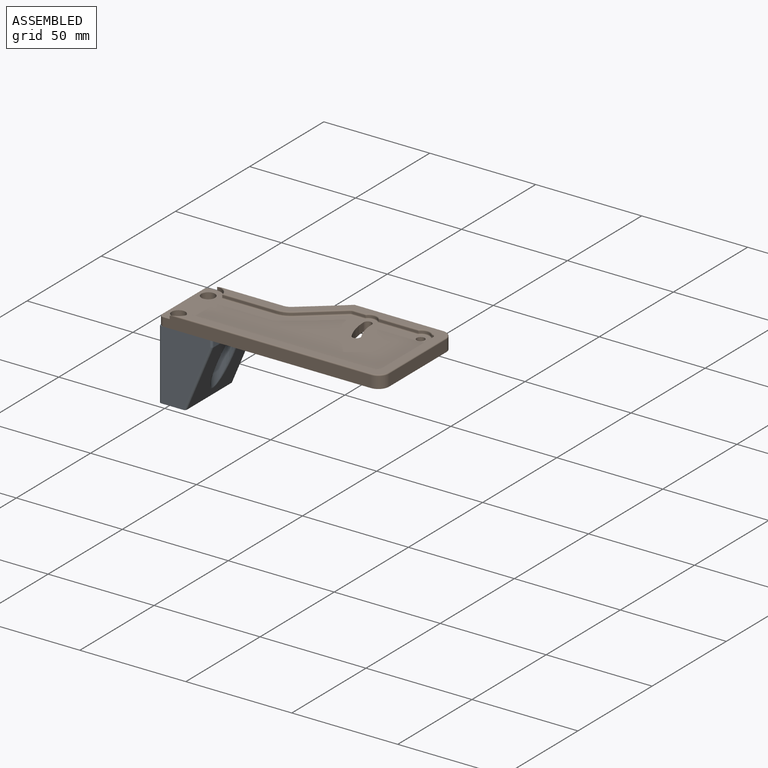
[diagram: assembled view]
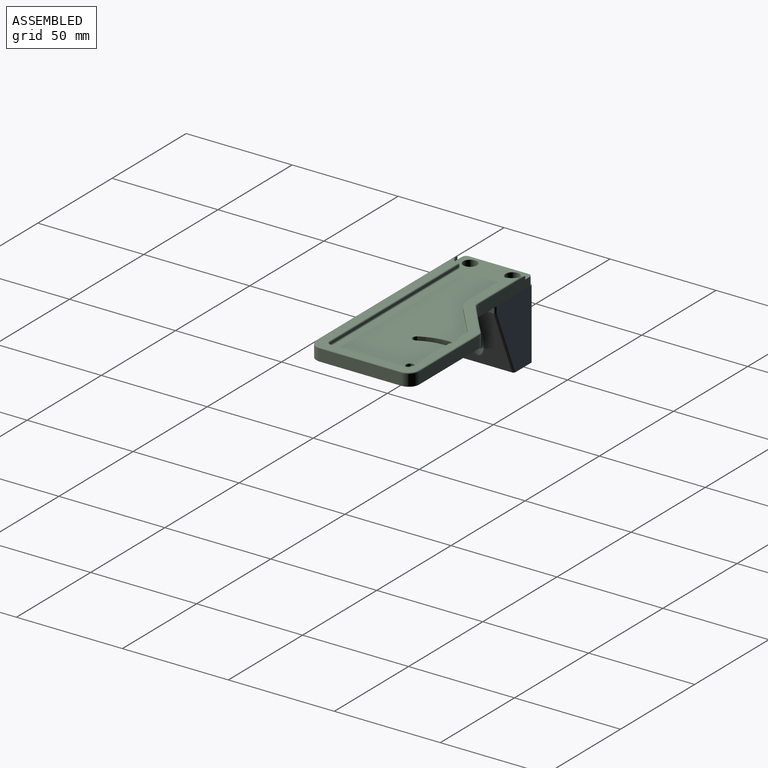
[diagram: assembled view, second angle]
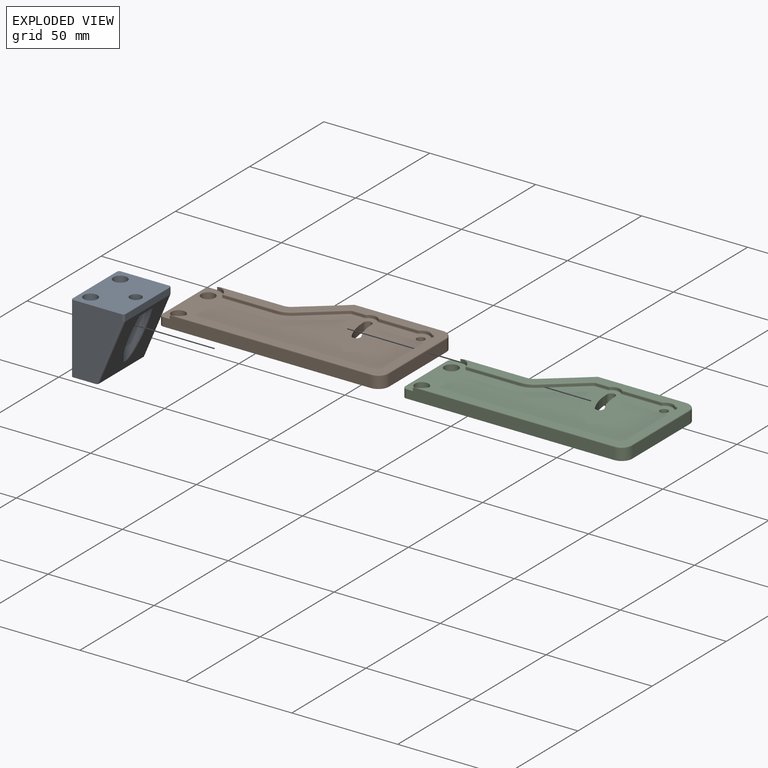
[diagram: exploded view]
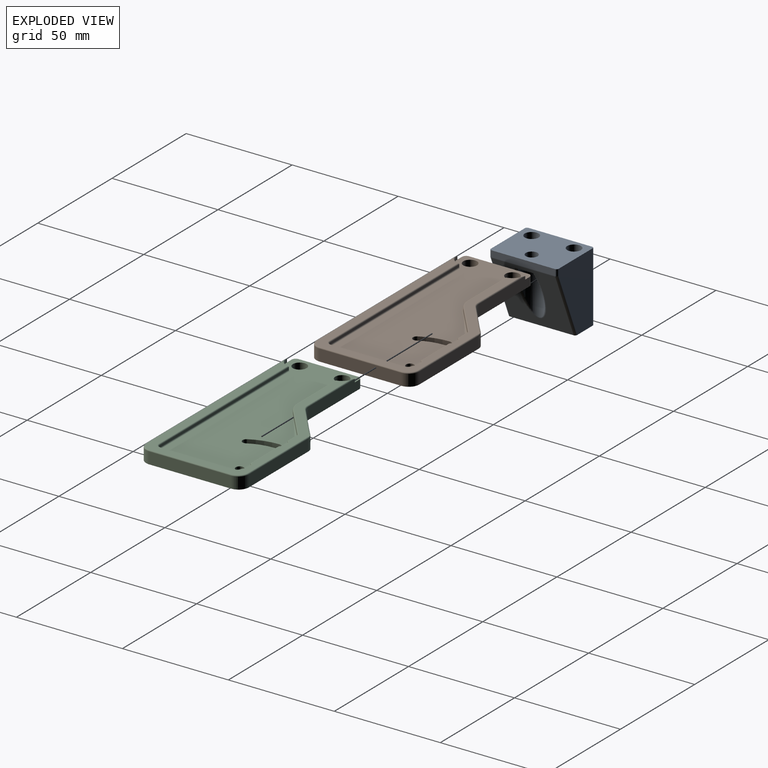
[diagram: exploded view, second angle]
ASSEMBLY  parts=3 mates=3
PART A: 22 faces, bbox 25.2x32.2x33.6 mm
  f0: plane 33x23mm, normal (0,-1,0), area 569.8mm2, adj f3,f7,f13,f14,f20
  f1: plane 33x23mm, normal (0,1,0), area 569.8mm2, adj f3,f7,f16,f19,f21
  f2: plane 30x2.93mm, normal (1,0,0), area 87.9mm2, adj f7,f13,f16,f17
  f3: plane 32.18x12.68mm, normal (0,0,1), area 332.7mm2, adj f0,f1,f4,f5,f6,f8,f14,f19
  f4: plane 33x30mm, normal (-1,0,0), area 990mm2, adj f3,f7,f20,f21
  f5: cylinder r=3.25mm len=33mm, axis (0,0,1), area 673.9mm2, adj f3,f7
  f6: cylinder r=3.25mm len=33mm, axis (0,0,1), area 673.9mm2, adj f3,f7
  f7: plane 32x25mm, normal (0,0,-1), area 709mm2, adj f0,f1,f2,f4,f5,f6,f9,f13
  f8: plane 30x29.69mm, normal (0.92,0,0.39), area 702.2mm2, adj f3,f10,f12,f14,f17,f19
  f9: cylinder r=2.75mm len=5.5mm, axis (0,0,-1), area 86.4mm2, adj f7,f10
  f10: plane 10.05x9.97mm, normal (0,0,1), area 58.7mm2, adj f8,f9,f11,f12
  f11: cylinder r=5.03mm len=23.73mm, axis (0,0,-1), area 321.3mm2, adj f10,f12
  f12: bspline ~24.49x12.05mm, area 73.8mm2, adj f8,f10,f11
  f13: cylinder r=1mm len=2.93mm, axis (0,0,1), area 4.6mm2, adj f0,f2,f7,f15
  f14: cylinder r=1mm len=30.46mm, axis (-0.39,0,0.92), area 50.9mm2, adj f0,f3,f8,f15
  f15: sphere r=1mm, area 0.4mm2, adj f13,f14,f17
  f16: cylinder r=1mm len=2.93mm, axis (0,0,-1), area 4.6mm2, adj f1,f2,f7,f18
  f17: cylinder r=1mm len=30mm, axis (0,-1,0), area 11.9mm2, adj f2,f8,f15,f18
  f18: sphere r=1mm, area 0.4mm2, adj f16,f17,f19
  f19: cylinder r=1mm len=30.46mm, axis (0.39,0,-0.92), area 50.9mm2, adj f1,f3,f8,f18
  f20: cylinder r=1mm len=33mm, axis (0,0,-1), area 51.8mm2, adj f0,f3,f4,f7
  f21: cylinder r=1mm len=33mm, axis (0,0,1), area 51.8mm2, adj f1,f3,f4,f7
PART B: 83 faces, bbox 105.4x50.4x6 mm
  f0: plane 10.71x8.87mm, normal (0,0,1), area 0.4mm2, adj f9,f23,f24
  f1: plane 1.51x0.87mm, normal (0,0,1), area 0mm2, adj f10,f25
  f2: plane 99.51x44.43mm, normal (0,0,1), area 2882.7mm2, adj f4,f5,f6,f7,f8,f13,f14,f15
  f3: cylinder r=5mm len=5.5mm, axis (0,0,1), area 43.2mm2, adj f4,f20,f21,f60
  f4: plane 98.01x5.5mm, normal (0,-1,0), area 534.6mm2, adj f2,f3,f5,f21,f26,f58
  f5: cylinder r=2mm len=4mm, axis (0,0,1), area 12.6mm2, adj f2,f4,f6,f21
  f6: plane 28x4mm, normal (-1,0,0), area 112mm2, adj f2,f5,f7,f21
  f7: cylinder r=2mm len=4mm, axis (0,0,1), area 12.6mm2, adj f2,f6,f8,f21
  f8: plane 34.56x5.5mm, normal (0,1,0), area 185.5mm2, adj f2,f7,f21,f41,f42,f63
  f9: plane 10.71x8.87mm, normal (-0.64,0.77,0), area 55.6mm2, adj f0,f10,f21,f23
  f10: cylinder r=5mm len=4mm, axis (0,0,1), area 13.8mm2, adj f1,f9,f11,f21,f22
  f11: plane 39.83x5.5mm, normal (0,1,0), area 219mm2, adj f10,f12,f21,f25,f66
  f12: cylinder r=5mm len=5.5mm, axis (0,0,1), area 43.2mm2, adj f11,f20,f21,f64
  f13: cylinder r=1.9mm len=4mm, axis (0,0,1), area 23.9mm2, adj f2,f14,f19,f21
  f14: cylinder r=26.9mm len=12.97mm, axis (0,0,1), area 54.1mm2, adj f2,f13,f15,f21
  f15: cylinder r=1.9mm len=4mm, axis (0,0,1), area 23.9mm2, adj f2,f14,f19,f21
  f16: cylinder r=3.25mm len=6.5mm, axis (0,0,1), area 81.7mm2, adj f2,f21
  f17: cylinder r=3.25mm len=6.5mm, axis (0,0,1), area 81.7mm2, adj f2,f21
  f18: cylinder r=1.9mm len=4mm, axis (0,0,1), area 47.8mm2, adj f2,f21
  f19: cylinder r=23.1mm len=11.14mm, axis (0,0,1), area 46.5mm2, adj f2,f13,f15,f21
  f20: plane 38.57x5.5mm, normal (1,0,0), area 212.2mm2, adj f3,f12,f21,f62
  f21: plane 105.02x48.58mm, normal (0,0,-1), area 4150.2mm2, adj f3,f4,f5,f6,f7,f8,f9,f10
  f22: plane 1.71x0.31mm, normal (0,0,1), area 0mm2, adj f10,f25
  f23: plane 13.3x10.86mm, normal (-0.63,0.77,0), area 60.1mm2, adj f0,f9,f21,f24,f42,f67
  f24: plane 4.06x3.43mm, normal (-0.65,0.76,0), area 8mm2, adj f0,f23,f25,f68
  f25: extruded ~3.19x1.96mm, area 6mm2, adj f1,f11,f22,f24,f66,f68
  f26: cylinder r=6mm len=5.98mm, axis (0,0,-1), area 12.8mm2, adj f2,f4,f27,f56,f79
  f27: plane 87.09x1mm, normal (0,1,0), area 87.1mm2, adj f26,f28,f54,f79
  f28: cylinder r=2mm len=2mm, axis (0,0,-1), area 3.1mm2, adj f27,f29,f52,f81
  f29: plane 31.12x1mm, normal (-1,0,0), area 31.1mm2, adj f28,f30,f50,f82
  f30: plane 3.46x1mm, normal (-1,0,0), area 3.5mm2, adj f29,f31,f48,f80
  f31: cylinder r=2mm len=2mm, axis (0,0,-1), area 3mm2, adj f30,f32,f46,f78
  f32: cylinder r=4.27mm len=6.25mm, axis (0,0,-1), area 7mm2, adj f31,f33,f44,f77
  f33: plane 18.83x1mm, normal (0,-1,0), area 18.8mm2, adj f32,f34,f45,f76
  f34: cylinder r=4.21mm len=6.09mm, axis (0,0,-1), area 6.8mm2, adj f33,f35,f47,f75
  f35: plane 6.05x1mm, normal (0,-1,0), area 6mm2, adj f34,f36,f49,f74
  f36: cylinder r=2mm len=1.28mm, axis (0,0,-1), area 1.4mm2, adj f35,f37,f51,f73
  f37: plane 4.17x3.46mm, normal (0.64,-0.77,0), area 5.4mm2, adj f36,f38,f53,f72
  f38: plane 12.52x10.36mm, normal (0.64,-0.77,0), area 16.2mm2, adj f37,f39,f55,f71
  f39: cylinder r=10mm len=6.38mm, axis (0,0,-1), area 6.9mm2, adj f38,f40,f57,f70
  f40: plane 25.65x1mm, normal (0,-1,0), area 25.6mm2, adj f39,f41,f59,f69
  f41: cylinder r=6mm len=5.98mm, axis (0,0,-1), area 12.8mm2, adj f2,f8,f40,f61,f69
  f42: cylinder r=5mm len=5.5mm, axis (0,0,-1), area 18.5mm2, adj f8,f21,f23,f65
  f43: plane 96.05x47.57mm, normal (0,0,1), area 917mm2, adj f44,f45,f46,f47,f48,f49,f50,f51
  f44: torus R=4.77mm, axis (0,0,-1), area 5.6mm2, adj f32,f43,f45,f46
  f45: cylinder r=0.5mm len=18.83mm, axis (1,0,0), area 14.6mm2, adj f33,f43,f44,f47
  f46: torus R=2.5mm, axis (0,0,-1), area 2.5mm2, adj f31,f43,f44,f48
  f47: torus R=4.71mm, axis (0,0,-1), area 5.4mm2, adj f34,f43,f45,f49
  f48: cylinder r=0.5mm len=3.46mm, axis (0,-1,0), area 2.7mm2, adj f30,f43,f46,f50
  f49: cylinder r=0.5mm len=6.05mm, axis (1,0,0), area 4.7mm2, adj f35,f43,f47,f51
  f50: cylinder r=0.5mm len=31.12mm, axis (0,-1,0), area 24.4mm2, adj f29,f43,f48,f52
  f51: torus R=2.5mm, axis (0,0,-1), area 1.2mm2, adj f36,f43,f49,f53
  f52: torus R=2.5mm, axis (0,0,-1), area 2.7mm2, adj f28,f43,f50,f54
  f53: cylinder r=0.5mm len=4.49mm, axis (0.77,0.64,0), area 4.3mm2, adj f37,f43,f51,f55
  f54: cylinder r=0.5mm len=87.09mm, axis (-1,0,0), area 68.2mm2, adj f27,f43,f52,f56
  f55: cylinder r=0.5mm len=12.84mm, axis (0.77,0.64,0), area 12.8mm2, adj f38,f43,f53,f57
  f56: torus R=6.5mm, axis (0,0,-1), area 5.3mm2, adj f26,f43,f54,f58
  f57: torus R=9.5mm, axis (0,0,-1), area 5.3mm2, adj f39,f43,f55,f59
  f58: cylinder r=0.5mm len=95.01mm, axis (-1,0,0), area 73.3mm2, adj f4,f43,f56,f60
  f59: cylinder r=0.5mm len=25.65mm, axis (1,0,0), area 20mm2, adj f40,f43,f57,f61
  f60: torus R=4.5mm, axis (0,0,-1), area 5.9mm2, adj f3,f43,f58,f62
  f61: torus R=6.5mm, axis (0,0,-1), area 5.3mm2, adj f41,f43,f59,f63
  f62: cylinder r=0.5mm len=38.57mm, axis (0,-1,0), area 30.3mm2, adj f20,f43,f60,f64
  f63: cylinder r=0.5mm len=31.47mm, axis (1,0,0), area 23.4mm2, adj f8,f43,f61,f65
  f64: torus R=4.5mm, axis (0,0,-1), area 5.9mm2, adj f12,f43,f62,f66
  f65: torus R=5.5mm, axis (0,0,-1), area 2.8mm2, adj f42,f43,f63,f67
  f66: cylinder r=0.5mm len=41.55mm, axis (1,0,0), area 32.1mm2, adj f11,f25,f43,f64,f68
  f67: cylinder r=0.5mm len=13.62mm, axis (-0.77,-0.63,0), area 13.5mm2, adj f23,f43,f65,f68
  f68: cylinder r=0.5mm len=5.66mm, axis (-0.76,-0.65,0), area 5mm2, adj f24,f25,f43,f66,f67
  f69: cylinder r=0.5mm len=25.65mm, axis (-1,0,0), area 20.1mm2, adj f2,f40,f41,f70
  f70: torus R=10.5mm, axis (0,0,-1), area 5.5mm2, adj f2,f39,f69,f71
  f71: cylinder r=0.5mm len=12.84mm, axis (-0.77,-0.64,0), area 12.8mm2, adj f2,f38,f70,f72
  f72: cylinder r=0.5mm len=4.49mm, axis (-0.77,-0.64,0), area 4.3mm2, adj f2,f37,f71,f73
  f73: torus R=1.5mm, axis (0,0,-1), area 1mm2, adj f2,f36,f72,f74
  f74: cylinder r=0.5mm len=6.27mm, axis (-1,0,0), area 4.8mm2, adj f2,f35,f73,f75
  f75: torus R=3.71mm, axis (0,0,-1), area 5.3mm2, adj f2,f34,f74,f76
  f76: cylinder r=0.5mm len=19.28mm, axis (-1,0,0), area 15mm2, adj f2,f33,f75,f77
  f77: torus R=3.77mm, axis (0,0,-1), area 5.5mm2, adj f2,f32,f76,f78
  f78: torus R=1.5mm, axis (0,0,-1), area 2.2mm2, adj f2,f31,f77,f80
  f79: cylinder r=0.5mm len=87.09mm, axis (1,0,0), area 68.4mm2, adj f2,f26,f27,f81
  f80: cylinder r=0.5mm len=3.46mm, axis (0,1,0), area 2.7mm2, adj f2,f30,f78,f82
  f81: torus R=1.5mm, axis (0,0,-1), area 2.2mm2, adj f2,f28,f79,f82
  f82: cylinder r=0.5mm len=31.12mm, axis (0,1,0), area 24.4mm2, adj f2,f29,f80,f81
PART C: same geometry as B
PLACE A rot(axis=(1,0,0),180deg) t=(-10.2,48.41,66.1)mm
PLACE B t=(-26.31,-16.61,29.1)mm
PLACE C t=(-26.31,-16.61,29.1)mm
MATE planar A.f6 <-> B.f17  axis (0,0,1) through (-47.52,5.77,33.1)mm
MATE planar A.f6 <-> B.f17  axis (0,0,1) through (-47.52,5.77,33.1)mm
MATE planar A.f6 <-> B.f17  axis (0,0,1) through (-47.52,5.77,33.1)mm
